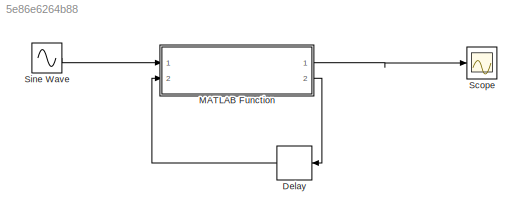
MODEL slx_5e86e6264b88
KIND model
CONFIG AbsTol = auto
CONFIG EnableMultiTasking = off
CONFIG FixedStep = auto
CONFIG MaxStep = auto
CONFIG MinStep = auto
CONFIG RelTol = 1e-3
CONFIG SampleTimeConstraint = Unconstrained
CONFIG Solver = VariableStepAuto
CONFIG SolverName = VariableStepAuto
CONFIG StartTime = 0.0
CONFIG StopTime = 10.0
BLOCK [Delay] Delay
  DelayLength = 1
  InitialCondition = [0 0 0;0.2 0.2 0;0.4 0.2 0;0.4 0.4 0;0.6 0.2 0;0.6 0.4 0;0.6 0.6 0;0.8 0.2 0;0.8 0.4 0;0.8 0.6 0;0.8 0.8 0;1 0.2 0;1 0.4 0;1 0.6 0;1 0.8 0;1 1 0;1.2 0.2 0;1.2 0.4 0;1.2 0.6 0;1.2 0.8 0;1.2 1 0;1.2 1.2 0;1.4 0.2 0;1.4 0.4 0;1.4 0.6 0;1.4 0.8 0;1.4 1 0;1.4 1.2 0;1.4 1.4 0;1.6 0.2 0;1.6 0.4 0;1.6 0.6 0;1.6 0.8 0;1.6 1 0;1.6 1.2 0;1.6 1.4 0;1.6 1.6 0;1.8 0.2 0;1.8 0.4 0;1.8 0.6 0;1.8 0.8 0;1.8 1 0;1.8...<+11388ch>
  InputPortMap = u0
  Ports = [1, 1]
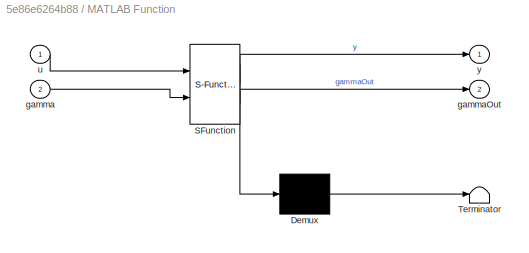
BLOCK [SubSystem] MATLAB Function
  ErrorFcn = Stateflow.Translate.translate
  PermitHierarchicalResolution = ExplicitOnly
  Ports = [2, 2]
  RequestExecContextInheritance = off
  SFBlockType = MATLAB Function
  TreatAsAtomicUnit = on
BLOCK [Demux] MATLAB Function/ Demux 
  Outputs = 1
  Ports = [1, 1]
BLOCK [S-Function] MATLAB Function/ SFunction 
  EnableBusSupport = on
  FunctionName = sf_sfun
  PortCounts = [2 3]
  Ports = [2, 3]
  SFcnIsStateOwnerBlock = off
  SFunctionDeploymentMode = off
  Tag = Stateflow S-Function test 2
BLOCK [Terminator] MATLAB Function/ Terminator 
BLOCK [Inport] MATLAB Function/gamma
  IconDisplay = Port number
  Port = 2
BLOCK [Outport] MATLAB Function/gammaOut
  IconDisplay = Port number
  Port = 2
BLOCK [Inport] MATLAB Function/u
  IconDisplay = Port number
BLOCK [Outport] MATLAB Function/y
  IconDisplay = Port number
BLOCK [Scope] Scope
  Floating = off
  NumInputPorts = 1
  Ports = [1]
  ScopeSpecificationString = Simulink.scopes.TimeScopeBlockCfg('CurrentConfiguration', extmgr.ConfigurationSet(extmgr.Configuration('Core','General UI',true),extmgr.Configuration('Core','Source UI',true),extmgr.Configuration('Sources','WiredSimulink',true),extmgr.Configuration('Visuals','Time Domain',true),extmgr.Configuration('Tools','Plot Navigation',true),extmgr.Configuration('Tools','Measurements',true)),'Version','2018b'...<+1ch>
BLOCK [Sin] Sine Wave
  Amplitude = 5
  Bias = 5
  Frequency = 2*pi
  Ports = [0, 1]
  SampleTime = 0
LINE Delay:1 -> MATLAB Function:2
LINE MATLAB Function:1 -> Scope:1
LINE MATLAB Function:2 -> Delay:1
LINE Sine Wave:1 -> MATLAB Function:1
CHART MATLAB Function states=1 transitions=1
  STATE_LABEL 'eML_blk_kernel()'
  STATE_LABEL 'SCRIPT:\nfunction [y, gammaOut] = fcn(u,gamma)\n\n    mu = ones(length(gamma),1);\n    [y,gammaOut] = preisach_v1(u,gamma,mu);\n'
